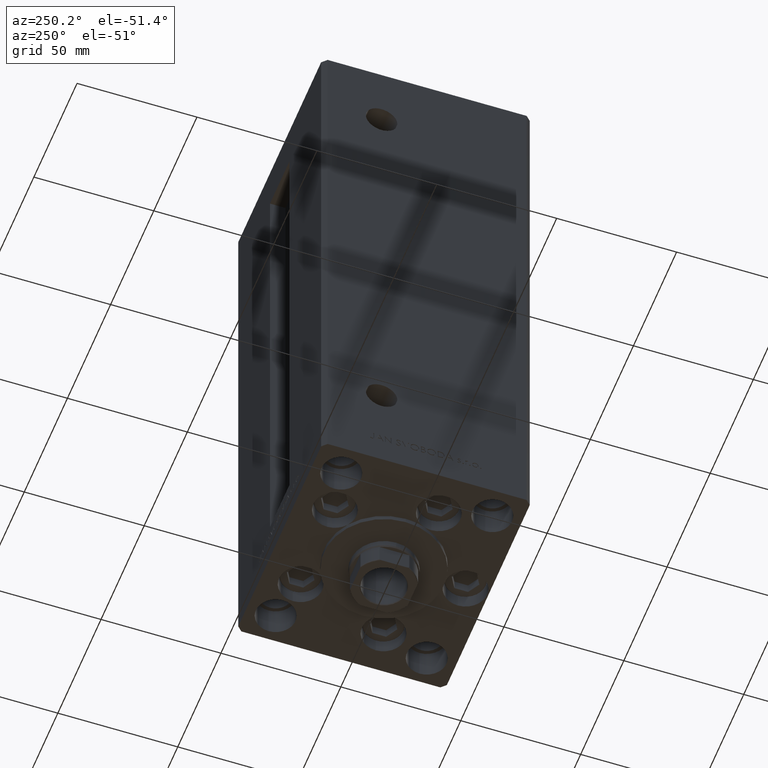
[diagram: clean part render]
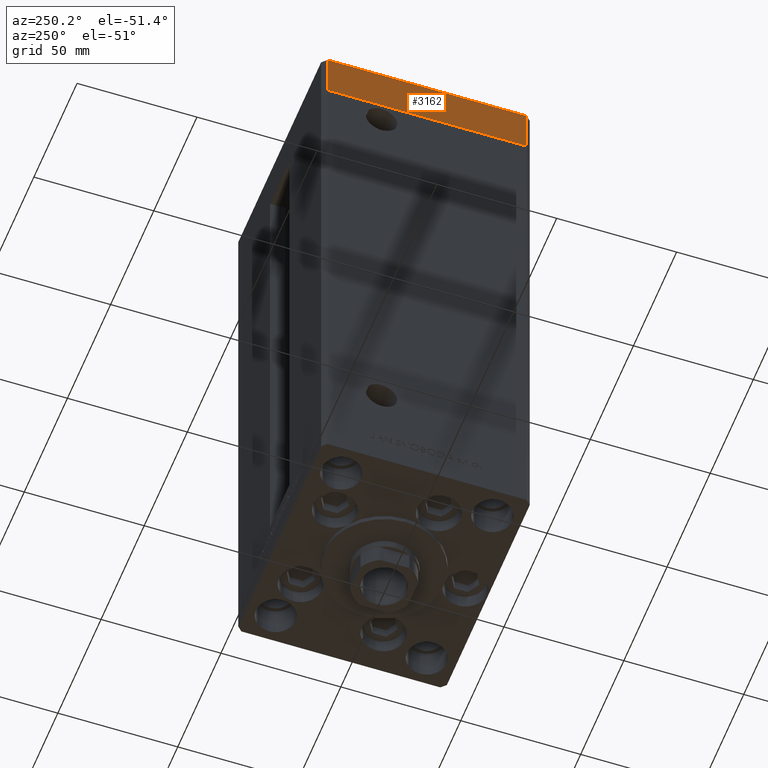
[diagram: same view with one face highlighted and labeled with its STEP entity id]
A machine part, auxiliary view. The second image highlights one B-rep face of the part: STEP entity #3162.
In plain terms, the highlighted planar face has unit normal (-1, -0, 0).
Its self-contained STEP definition (entity closure, byte-faithful):
#860 = DIRECTION ( 'NONE',  ( 0.000000000000000000, 0.000000000000000000, 1.000000000000000000 ) ) ;
#1610 = CARTESIAN_POINT ( 'NONE',  ( -50.00000000000000711, 41.49999999999995026, -19.00000000000000000 ) ) ;
#1677 = AXIS2_PLACEMENT_3D ( 'NONE', #23915, #39332, #23161 ) ;
#3162 = ADVANCED_FACE ( 'NONE', ( #7710 ), #46945, .T. ) ;
#5652 = VERTEX_POINT ( 'NONE', #29623 ) ;
#5793 = VECTOR ( 'NONE', #860, 1000.000000000000000 ) ;
#6605 = EDGE_CURVE ( 'NONE', #29401, #5652, #11055, .T. ) ;
#7263 = DIRECTION ( 'NONE',  ( 8.360113137237628665E-17, -1.000000000000000000, 0.000000000000000000 ) ) ;
#7605 = ORIENTED_EDGE ( 'NONE', *, *, #29386, .T. ) ;
#7710 = FACE_OUTER_BOUND ( 'NONE', #7742, .T. ) ;
#7742 = EDGE_LOOP ( 'NONE', ( #42242, #9966, #7605, #18466 ) ) ;
#8063 = EDGE_CURVE ( 'NONE', #29860, #5652, #20117, .T. ) ;
#9966 = ORIENTED_EDGE ( 'NONE', *, *, #49191, .F. ) ;
#11055 = LINE ( 'NONE', #15620, #13837 ) ;
#13778 = LINE ( 'NONE', #1610, #37779 ) ;
#13837 = VECTOR ( 'NONE', #7263, 1000.000000000000000 ) ;
#15194 = CARTESIAN_POINT ( 'NONE',  ( -50.00000000000000711, 41.49999999999995026, 0.000000000000000000 ) ) ;
#15221 = CARTESIAN_POINT ( 'NONE',  ( -50.00000000000000711, 41.49999999999995026, -19.00000000000000000 ) ) ;
#15620 = CARTESIAN_POINT ( 'NONE',  ( -50.00000000000000711, 41.49999999999995026, 0.000000000000000000 ) ) ;
#18466 = ORIENTED_EDGE ( 'NONE', *, *, #8063, .T. ) ;
#20117 = LINE ( 'NONE', #35532, #5793 ) ;
#21993 = VERTEX_POINT ( 'NONE', #15221 ) ;
#22426 = LINE ( 'NONE', #41660, #47826 ) ;
#23161 = DIRECTION ( 'NONE',  ( 8.360113137237628665E-17, -1.000000000000000000, 0.000000000000000000 ) ) ;
#23915 = CARTESIAN_POINT ( 'NONE',  ( -50.00000000000000711, 41.49999999999995026, -19.00000000000000000 ) ) ;
#24420 = DIRECTION ( 'NONE',  ( 8.360113137237628665E-17, -1.000000000000000000, 0.000000000000000000 ) ) ;
#29386 = EDGE_CURVE ( 'NONE', #21993, #29860, #13778, .T. ) ;
#29401 = VERTEX_POINT ( 'NONE', #15194 ) ;
#29623 = CARTESIAN_POINT ( 'NONE',  ( -50.00000000000000000, -41.50000000000000000, 0.000000000000000000 ) ) ;
#29860 = VERTEX_POINT ( 'NONE', #41163 ) ;
#30011 = DIRECTION ( 'NONE',  ( 0.000000000000000000, 0.000000000000000000, 1.000000000000000000 ) ) ;
#35532 = CARTESIAN_POINT ( 'NONE',  ( -50.00000000000000000, -41.50000000000000000, -19.00000000000000000 ) ) ;
#37779 = VECTOR ( 'NONE', #24420, 1000.000000000000000 ) ;
#39332 = DIRECTION ( 'NONE',  ( -1.000000000000000000, -8.360113137237628665E-17, 0.000000000000000000 ) ) ;
#41163 = CARTESIAN_POINT ( 'NONE',  ( -50.00000000000000000, -41.50000000000000000, -19.00000000000000000 ) ) ;
#41660 = CARTESIAN_POINT ( 'NONE',  ( -50.00000000000000711, 41.49999999999995026, -19.00000000000000000 ) ) ;
#42242 = ORIENTED_EDGE ( 'NONE', *, *, #6605, .F. ) ;
#46945 = PLANE ( 'NONE',  #1677 ) ;
#47826 = VECTOR ( 'NONE', #30011, 1000.000000000000000 ) ;
#49191 = EDGE_CURVE ( 'NONE', #21993, #29401, #22426, .T. ) ;